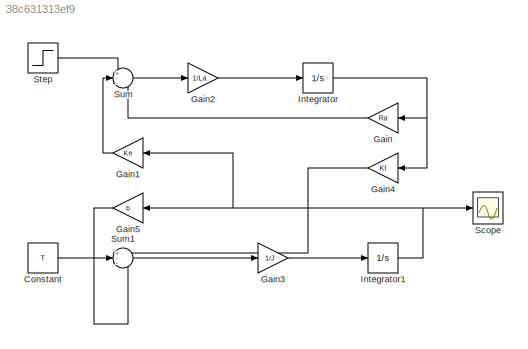
MODEL slx_38c631313ef9
KIND model
CONFIG AbsTol = auto
CONFIG EnableMultiTasking = off
CONFIG FixedStep = auto
CONFIG MaxStep = auto
CONFIG MinStep = auto
CONFIG RelTol = 1e-3
CONFIG SampleTimeConstraint = Unconstrained
CONFIG SolverName = ode45
CONFIG StartTime = 0.0
CONFIG StopTime = 10.0
BLOCK [Constant] Constant
  Value = T
BLOCK [Gain] Gain
  Gain = Ra
  NameLocation = top
BLOCK [Gain] Gain1
  Gain = Ke
  NameLocation = top
BLOCK [Gain] Gain2
  Gain = 1/La
BLOCK [Gain] Gain3
  Gain = 1/J
BLOCK [Gain] Gain4
  Gain = Kt
  NameLocation = top
BLOCK [Gain] Gain5
  Gain = b
  NameLocation = top
BLOCK [Integrator] Integrator
BLOCK [Integrator] Integrator1
BLOCK [Scope] Scope
  ActiveDisplayYMaximum = 22.500222629270795
  ActiveDisplayYMinimum = -2.5000247365856434
  ContainerLayout = {"WindowBounds":[4,1363,591,765]}
  Floating = off
  GraphicalSettings = {"Style":{"BackgroundColor":[0.12941176470588237,0.12941176470588237,0.12941176470588237],"AxesColor":[0.07058823529411765,0.07058823529411765,0.07058823529411765],"LabelsColor":[0.8509803921568627,0.8509803921568627,0.8509803921568627],"PreserveColors":false,"Visible":[true],"LineStyle":["-"],"LineWidth":[1.5],"BarWidth":[0.9],"LineColor":["auto"],"LineFaceAlpha":[1],"LineEdgeAlpha":[1],"Marker":...<+1993ch>
  MultipleDisplayCache = [{"MaxYLimMag":22.500222629270795,"MaxYLimReal":22.500222629270795,"MinYLimMag":0,"MinYLimReal":-2.5000247365856434,"PlotAsMagnitudePhase":false,"ShowGrid":true,"ShowLegend":false,"Title":"%<SignalLabel>","YLabel":""}]
  NumInputPorts = 1
  ScopeFrameLocation = window
  Visible = on
  WasSavedAsWebScope = on
  WindowPosition = [723.000000,353.000000,560.000000,421.000000,]
BLOCK [Step] Step
  After = 5
  SampleTime = 0
  Time = 0
BLOCK [Sum] Sum
  Inputs = +--
BLOCK [Sum] Sum1
  Inputs = +--
LINE Constant:1 -> Sum1:2
LINE Gain1:1 -> Sum:2
LINE Gain2:1 -> Integrator:1
LINE Gain3:1 -> Integrator1:1
LINE Gain4:1 -> Sum1:1
LINE Gain5:1 -> Sum1:3
LINE Gain:1 -> Sum:3
NET Integrator1:1 -> Gain1:1, Gain5:1, Scope:1
NET Integrator:1 -> Gain4:1, Gain:1
LINE Step:1 -> Sum:1
LINE Sum1:1 -> Gain3:1
LINE Sum:1 -> Gain2:1
note: NET lines group one-source signal fan-out (src -> all destinations, sorted); 1:1 wires keep LINE
